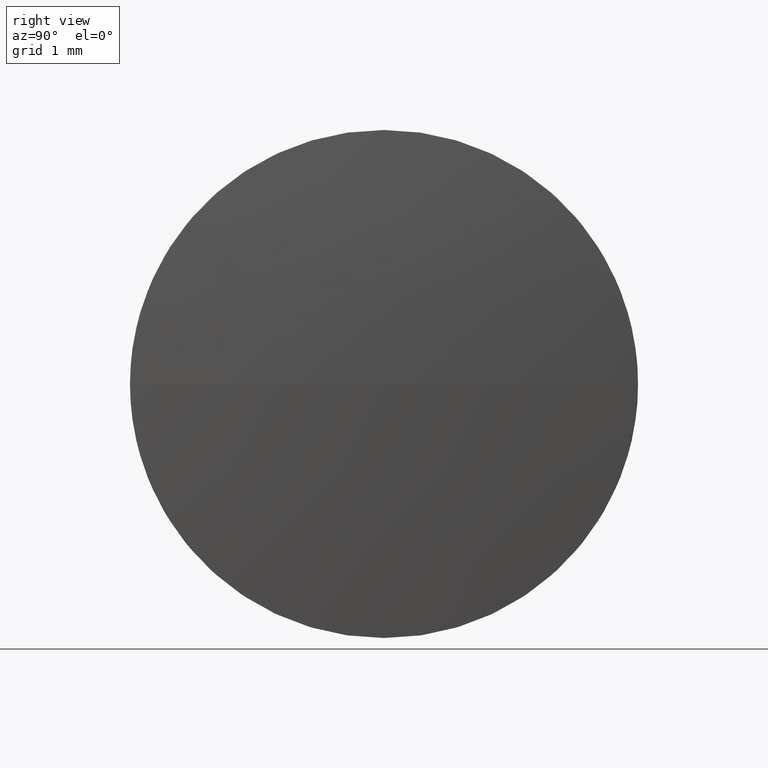
[diagram: clean part render]
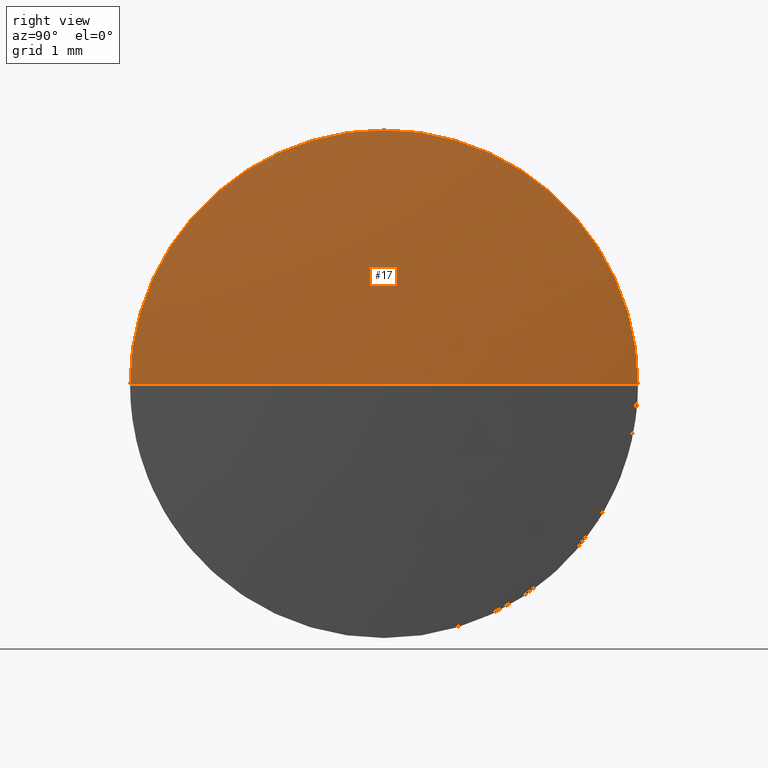
[diagram: same view with one face highlighted and labeled with its STEP entity id]
A machine part, right view. The second image highlights one B-rep face of the part: STEP entity #17.
In plain terms, the highlighted spherical surface has radius 33.15 mm.
Its self-contained STEP definition (entity closure, byte-faithful):
#4 = VERTEX_POINT ( 'NONE', #42 ) ;
#9 = DIRECTION ( 'NONE',  ( -1.000000000000000000, 0.0000000000000000000, 0.0000000000000000000 ) ) ;
#13 = EDGE_LOOP ( 'NONE', ( #150, #172, #61, #182 ) ) ;
#17 = ADVANCED_FACE ( 'NONE', ( #152 ), #69, .T. ) ;
#18 = CARTESIAN_POINT ( 'NONE',  ( 487.3789024889172800, 224.6626212863787900, 0.0000000000000000000 ) ) ;
#22 = CIRCLE ( 'NONE', #84, 3.150000000000013700 ) ;
#23 = DIRECTION ( 'NONE',  ( 0.0000000000000000000, 0.0000000000000000000, -1.000000000000000000 ) ) ;
#27 = DIRECTION ( 'NONE',  ( 0.0000000000000000000, -1.000000000000000000, 0.0000000000000000000 ) ) ;
#33 = DIRECTION ( 'NONE',  ( 0.0000000000000000000, -1.000000000000000000, -1.224646799147353200E-016 ) ) ;
#34 = DIRECTION ( 'NONE',  ( 0.0000000000000000000, -1.224646799147353200E-016, 1.000000000000000000 ) ) ;
#37 = EDGE_CURVE ( 'NONE', #153, #4, #117, .T. ) ;
#41 = AXIS2_PLACEMENT_3D ( 'NONE', #95, #34, #33 ) ;
#42 = CARTESIAN_POINT ( 'NONE',  ( 487.3789024889172800, 227.8126212863787400, 3.857637417314024600E-016 ) ) ;
#44 = DIRECTION ( 'NONE',  ( 0.0000000000000000000, 0.0000000000000000000, 1.000000000000000000 ) ) ;
#61 = ORIENTED_EDGE ( 'NONE', *, *, #37, .F. ) ;
#63 = AXIS2_PLACEMENT_3D ( 'NONE', #82, #145, #171 ) ;
#69 = SPHERICAL_SURFACE ( 'NONE', #168, 33.15000000000001300 ) ;
#82 = CARTESIAN_POINT ( 'NONE',  ( 487.3789024889172800, 224.6626212863787900, 0.0000000000000000000 ) ) ;
#83 = DIRECTION ( 'NONE',  ( 0.0000000000000000000, 0.0000000000000000000, 1.000000000000000000 ) ) ;
#84 = AXIS2_PLACEMENT_3D ( 'NONE', #18, #161, #44 ) ;
#87 = CARTESIAN_POINT ( 'NONE',  ( 487.3789024889172800, 221.5126212863788700, 0.0000000000000000000 ) ) ;
#95 = CARTESIAN_POINT ( 'NONE',  ( 454.3789024889172800, 224.6626212863788800, 0.0000000000000000000 ) ) ;
#97 = CARTESIAN_POINT ( 'NONE',  ( 487.3789024889172800, 224.6626212863787900, 3.150000000000013700 ) ) ;
#98 = CIRCLE ( 'NONE', #41, 33.15000000000001300 ) ;
#103 = CARTESIAN_POINT ( 'NONE',  ( 454.3789024889172800, 224.6626212863788800, 0.0000000000000000000 ) ) ;
#108 = VERTEX_POINT ( 'NONE', #185 ) ;
#117 = CIRCLE ( 'NONE', #63, 3.150000000000013700 ) ;
#122 = EDGE_CURVE ( 'NONE', #136, #153, #22, .T. ) ;
#125 = CIRCLE ( 'NONE', #134, 33.15000000000001300 ) ;
#126 = CARTESIAN_POINT ( 'NONE',  ( 454.3789024889172800, 224.6626212863788800, 0.0000000000000000000 ) ) ;
#134 = AXIS2_PLACEMENT_3D ( 'NONE', #126, #23, #9 ) ;
#136 = VERTEX_POINT ( 'NONE', #87 ) ;
#144 = EDGE_CURVE ( 'NONE', #108, #4, #98, .T. ) ;
#145 = DIRECTION ( 'NONE',  ( -1.000000000000000000, -0.0000000000000000000, -0.0000000000000000000 ) ) ;
#150 = ORIENTED_EDGE ( 'NONE', *, *, #180, .F. ) ;
#152 = FACE_OUTER_BOUND ( 'NONE', #13, .T. ) ;
#153 = VERTEX_POINT ( 'NONE', #97 ) ;
#161 = DIRECTION ( 'NONE',  ( -1.000000000000000000, -0.0000000000000000000, -0.0000000000000000000 ) ) ;
#168 = AXIS2_PLACEMENT_3D ( 'NONE', #103, #83, #27 ) ;
#171 = DIRECTION ( 'NONE',  ( 0.0000000000000000000, 0.0000000000000000000, 1.000000000000000000 ) ) ;
#172 = ORIENTED_EDGE ( 'NONE', *, *, #144, .T. ) ;
#180 = EDGE_CURVE ( 'NONE', #108, #136, #125, .T. ) ;
#182 = ORIENTED_EDGE ( 'NONE', *, *, #122, .F. ) ;
#185 = CARTESIAN_POINT ( 'NONE',  ( 487.5289024889172500, 224.6626212863788800, 0.0000000000000000000 ) ) ;